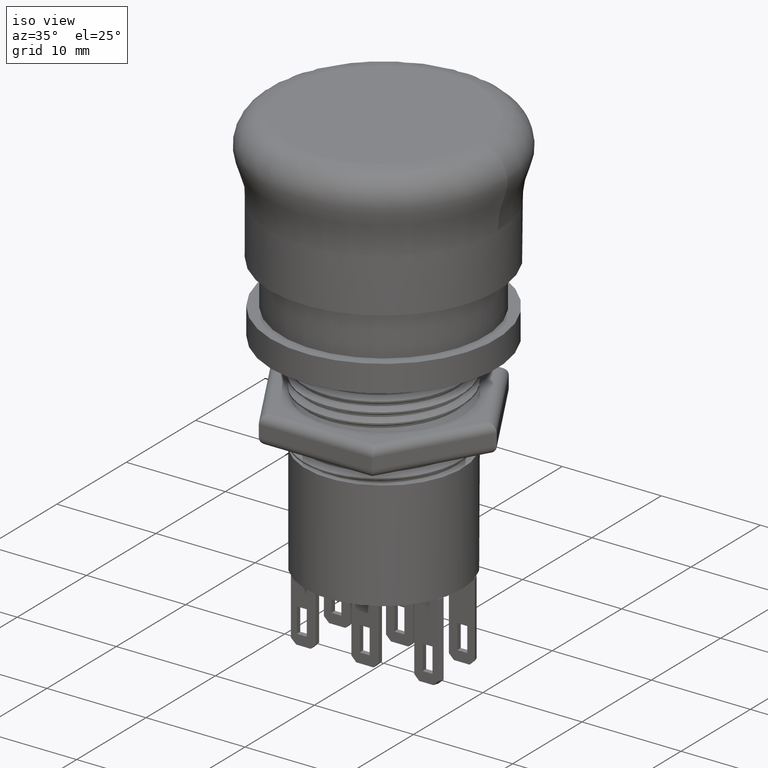
[diagram: clean part render]
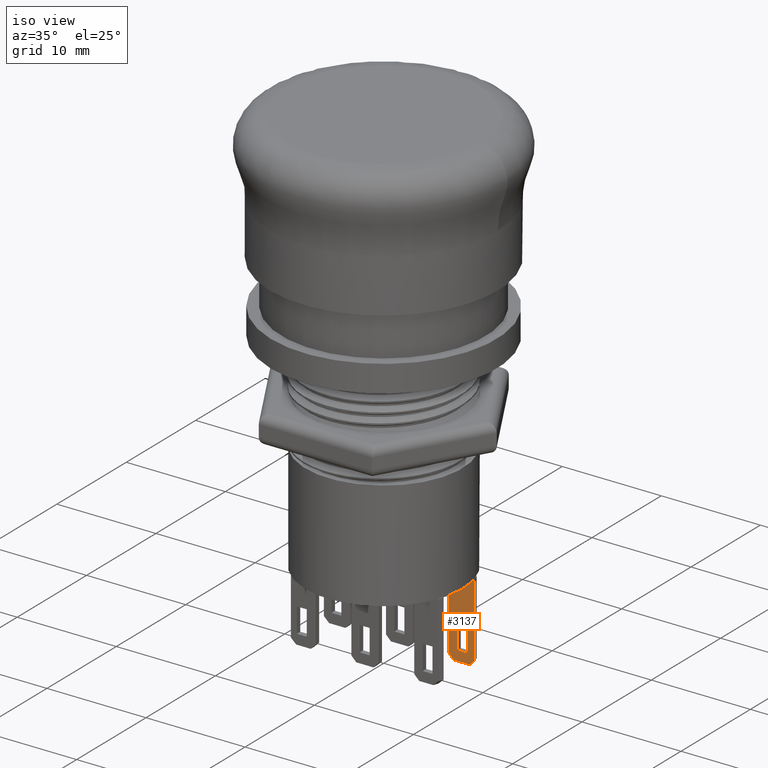
[diagram: same view with one face highlighted and labeled with its STEP entity id]
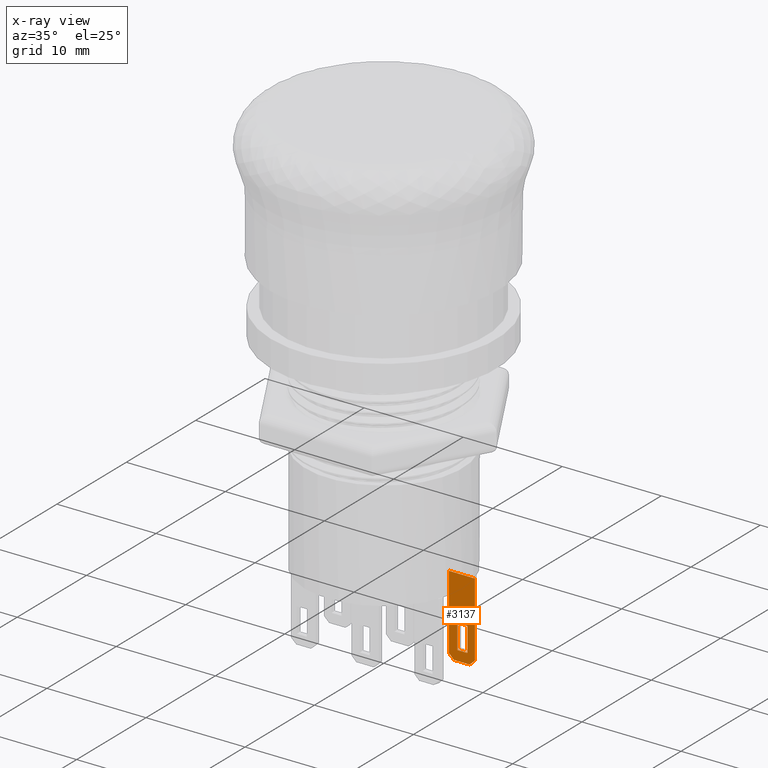
[diagram: x-ray of the same camera — body ghosted, the highlighted face saturated]
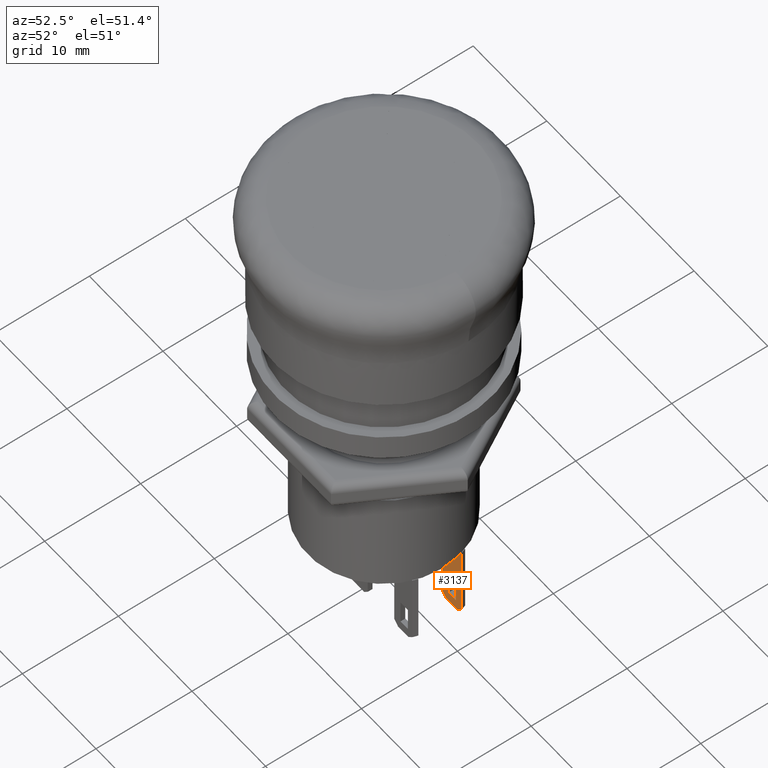
[diagram: same view with one face highlighted and labeled with its STEP entity id]
A machine part, iso view. The second image highlights one B-rep face of the part: STEP entity #3137.
The next image is the same camera in x-ray: the body ghosted, the highlighted face saturated — about 0% of this face is hidden behind the body in this view.
A second angle (auxiliary view) of the same face is appended — the face is thin or edge-on in the first view.
In plain terms, the highlighted planar face has unit normal (-0, -1, 0).
Its self-contained STEP definition (entity closure, byte-faithful):
#127=FACE_BOUND('',#575,.T.);
#138=(
BOUNDED_CURVE()
B_SPLINE_CURVE(2,(#7767,#7768,#7769),.UNSPECIFIED.,.F.,.F.)
B_SPLINE_CURVE_WITH_KNOTS((3,3),(1.04220418143709,1.14442885623524),
 .UNSPECIFIED.)
CURVE()
GEOMETRIC_REPRESENTATION_ITEM()
RATIONAL_B_SPLINE_CURVE((1.01152014708138,1.00632505078315,1.))
REPRESENTATION_ITEM('')
);
#378=FACE_OUTER_BOUND('',#574,.T.);
#574=EDGE_LOOP('',(#2625,#2626,#2627,#2628,#2629,#2630));
#575=EDGE_LOOP('',(#2631,#2632,#2633,#2634));
#845=LINE('',#7733,#1162);
#849=LINE('',#7741,#1166);
#852=LINE('',#7747,#1169);
#855=LINE('',#7752,#1172);
#859=LINE('',#7761,#1176);
#861=LINE('',#7765,#1178);
#862=LINE('',#7771,#1179);
#863=LINE('',#7773,#1180);
#864=LINE('',#7774,#1181);
#1162=VECTOR('',#3991,10.);
#1166=VECTOR('',#3997,10.);
#1169=VECTOR('',#4002,10.);
#1172=VECTOR('',#4007,10.);
#1176=VECTOR('',#4013,10.);
#1178=VECTOR('',#4017,10.);
#1179=VECTOR('',#4018,10.);
#1180=VECTOR('',#4019,10.);
#1181=VECTOR('',#4020,10.);
#1469=VERTEX_POINT('',#7731);
#1470=VERTEX_POINT('',#7732);
#1473=VERTEX_POINT('',#7740);
#1475=VERTEX_POINT('',#7746);
#1479=VERTEX_POINT('',#7758);
#1480=VERTEX_POINT('',#7760);
#1481=VERTEX_POINT('',#7764);
#1482=VERTEX_POINT('',#7766);
#1483=VERTEX_POINT('',#7770);
#1484=VERTEX_POINT('',#7772);
#1861=EDGE_CURVE('',#1469,#1470,#845,.T.);
#1865=EDGE_CURVE('',#1470,#1473,#849,.T.);
#1868=EDGE_CURVE('',#1473,#1475,#852,.T.);
#1871=EDGE_CURVE('',#1475,#1469,#855,.T.);
#1875=EDGE_CURVE('',#1479,#1480,#859,.T.);
#1877=EDGE_CURVE('',#1481,#1479,#861,.T.);
#1878=EDGE_CURVE('',#1482,#1481,#138,.T.);
#1879=EDGE_CURVE('',#1483,#1482,#862,.T.);
#1880=EDGE_CURVE('',#1484,#1483,#863,.T.);
#1881=EDGE_CURVE('',#1484,#1480,#864,.T.);
#2625=ORIENTED_EDGE('',*,*,#1875,.F.);
#2626=ORIENTED_EDGE('',*,*,#1877,.F.);
#2627=ORIENTED_EDGE('',*,*,#1878,.F.);
#2628=ORIENTED_EDGE('',*,*,#1879,.F.);
#2629=ORIENTED_EDGE('',*,*,#1880,.F.);
#2630=ORIENTED_EDGE('',*,*,#1881,.T.);
#2631=ORIENTED_EDGE('',*,*,#1868,.T.);
#2632=ORIENTED_EDGE('',*,*,#1871,.T.);
#2633=ORIENTED_EDGE('',*,*,#1861,.T.);
#2634=ORIENTED_EDGE('',*,*,#1865,.T.);
#2978=PLANE('',#3378);
#3137=ADVANCED_FACE('',(#378,#127),#2978,.T.);
#3378=AXIS2_PLACEMENT_3D('',#7763,#4015,#4016);
#3991=DIRECTION('',(0.,0.,-1.));
#3997=DIRECTION('',(-1.,6.05576195250085E-16,0.));
#4002=DIRECTION('',(0.,0.,1.));
#4007=DIRECTION('',(1.,-6.05576195250085E-16,0.));
#4013=DIRECTION('',(-0.707106781186549,4.28207034186485E-16,0.707106781186546));
#4015=DIRECTION('center_axis',(-6.05576195250085E-16,-1.,0.));
#4016=DIRECTION('ref_axis',(-1.,6.05576195250085E-16,0.));
#4017=DIRECTION('',(-1.,6.05576195250085E-16,0.));
#4018=DIRECTION('',(0.,0.,-1.));
#4019=DIRECTION('',(1.,-6.05576195250085E-16,0.));
#4020=DIRECTION('',(0.,0.,-1.));
#7731=CARTESIAN_POINT('',(6.85,2.25,-45.65));
#7732=CARTESIAN_POINT('',(6.85,2.25,-48.15));
#7733=CARTESIAN_POINT('',(6.85,2.25,-43.4));
#7740=CARTESIAN_POINT('',(5.85,2.25,-48.15));
#7741=CARTESIAN_POINT('',(7.23330881100785,2.25,-48.15));
#7746=CARTESIAN_POINT('',(5.85,2.25,-45.65));
#7747=CARTESIAN_POINT('',(5.85,2.25,-44.65));
#7752=CARTESIAN_POINT('',(6.73330881100785,2.25,-45.65));
#7758=CARTESIAN_POINT('',(5.5,2.25,-49.15));
#7760=CARTESIAN_POINT('',(5.,2.25,-48.65));
#7761=CARTESIAN_POINT('',(3.90415440550393,2.25,-47.5541544055039));
#7763=CARTESIAN_POINT('Origin',(7.61661762201569,2.25,-41.15));
#7764=CARTESIAN_POINT('',(7.09372003958431,2.25,-49.15));
#7765=CARTESIAN_POINT('',(5.,2.25,-49.15));
#7766=CARTESIAN_POINT('',(7.61661762201569,2.25,-48.65));
#7767=CARTESIAN_POINT('Ctrl Pts',(7.61661762201569,2.25,-48.65));
#7768=CARTESIAN_POINT('Ctrl Pts',(7.34667140518844,2.25,-48.9088865666183));
#7769=CARTESIAN_POINT('Ctrl Pts',(7.09372003958431,2.25,-49.15));
#7770=CARTESIAN_POINT('',(7.61661762201569,2.25,-41.15));
#7771=CARTESIAN_POINT('',(7.61661762201569,2.25,-41.15));
#7772=CARTESIAN_POINT('',(5.,2.25,-41.15));
#7773=CARTESIAN_POINT('',(5.,2.25,-41.15));
#7774=CARTESIAN_POINT('',(5.,2.25,-41.15));